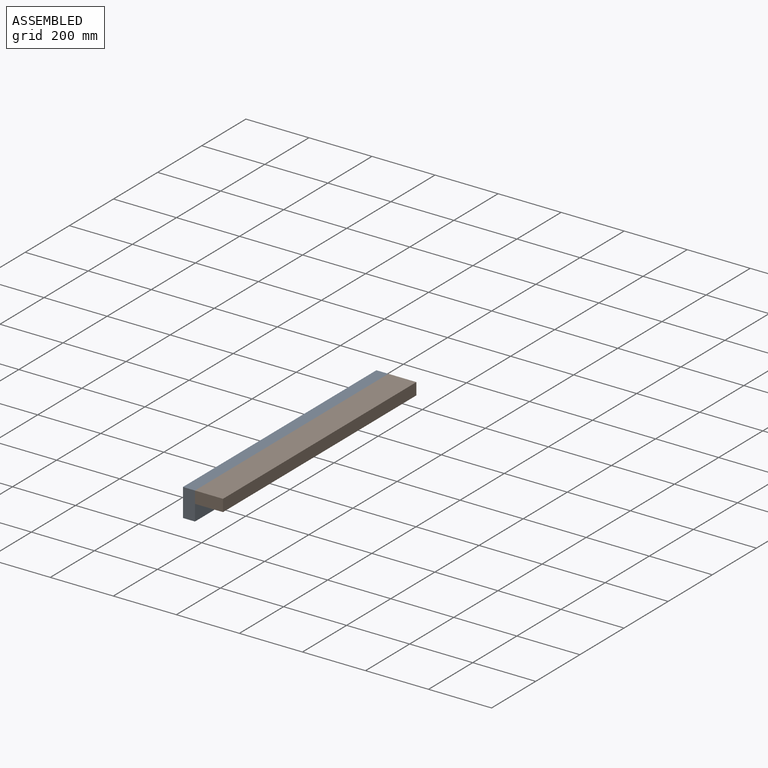
[diagram: assembled view]
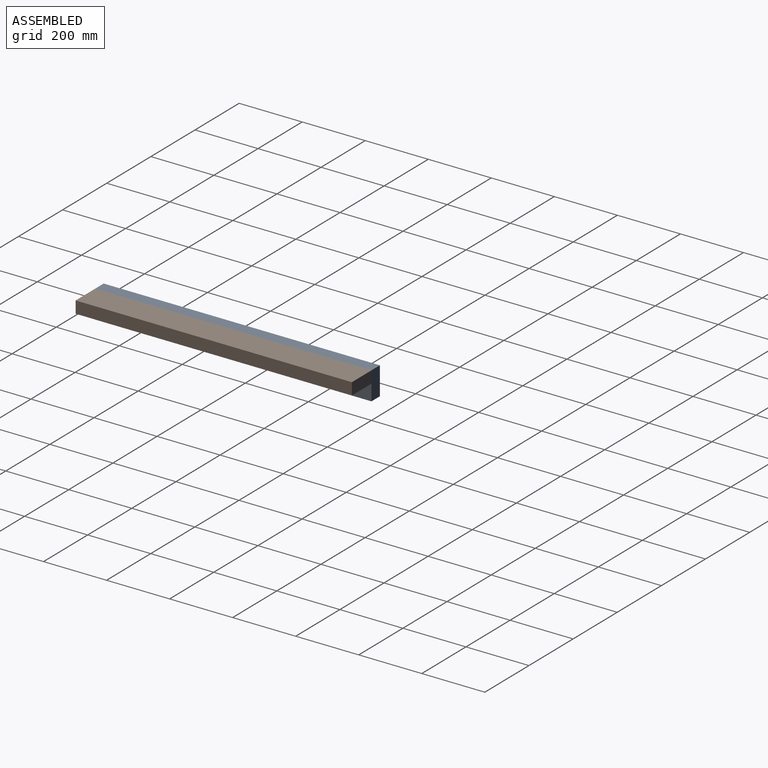
[diagram: assembled view, second angle]
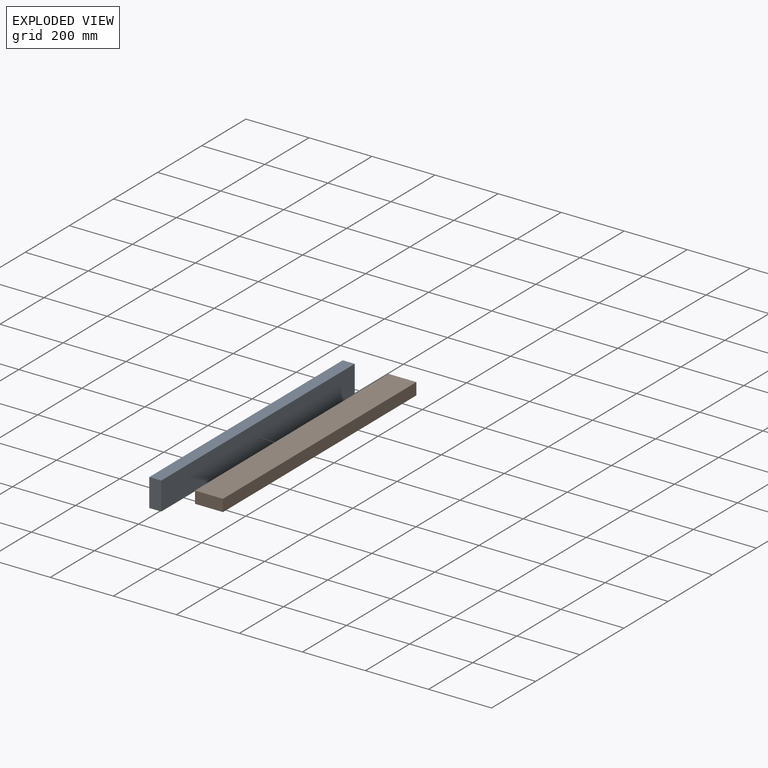
[diagram: exploded view]
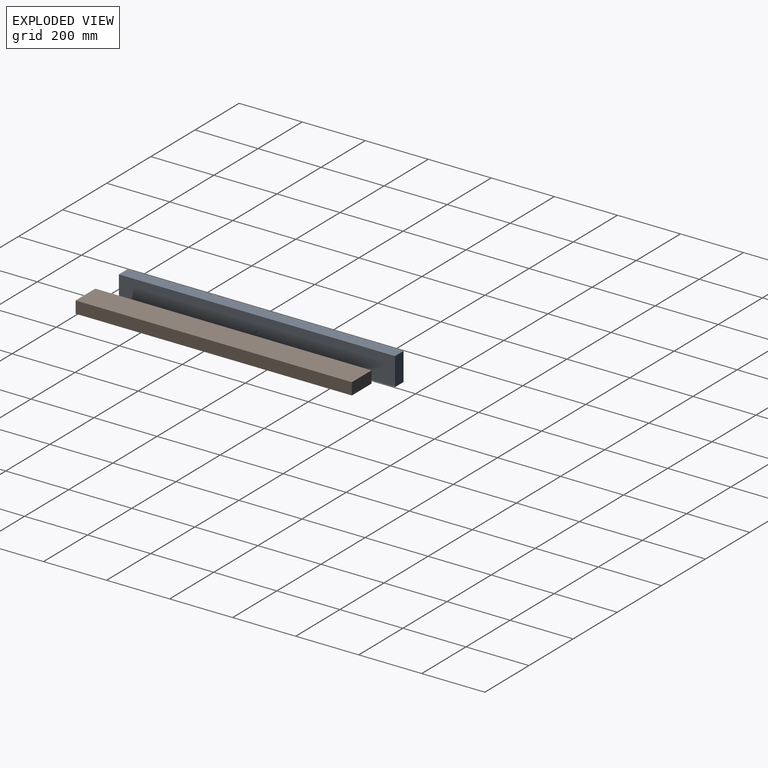
[diagram: exploded view, second angle]
ASSEMBLY  parts=2 mates=3
PART A: 6 faces, bbox 88.9x38.1x876.3 mm
  f0: plane 876.3x88.9mm, normal (0,1,0), area 77903.1mm2, adj f1,f3,f4,f5
  f1: plane 876.3x38.1mm, normal (-1,0,0), area 33387mm2, adj f0,f2,f4,f5
  f2: plane 876.3x88.9mm, normal (0,-1,0), area 77903.1mm2, adj f1,f3,f4,f5
  f3: plane 876.3x38.1mm, normal (1,0,0), area 33387mm2, adj f0,f2,f4,f5
  f4: plane 88.9x38.1mm, normal (0,0,1), area 3387.1mm2, adj f0,f1,f2,f3
  f5: plane 88.9x38.1mm, normal (0,0,-1), area 3387.1mm2, adj f0,f1,f2,f3
PART B: same geometry as A
PLACE A rot(axis=(-0.58,-0.58,-0.58),120deg) t=(-272.35,-326.7,308.68)mm
PLACE B rot(axis=(-1,0,0),90deg) t=(-272.35,-326.7,359.48)mm
MATE planar B.f4 <-> A.f4  axis (0,1,0) through (-227.9,549.6,378.53)mm
MATE planar A.f3 <-> B.f2  axis (0,0,1) through (-291.4,111.45,397.58)mm
MATE planar A.f0 <-> B.f1  axis (1,0,0) through (-272.35,111.45,353.13)mm
